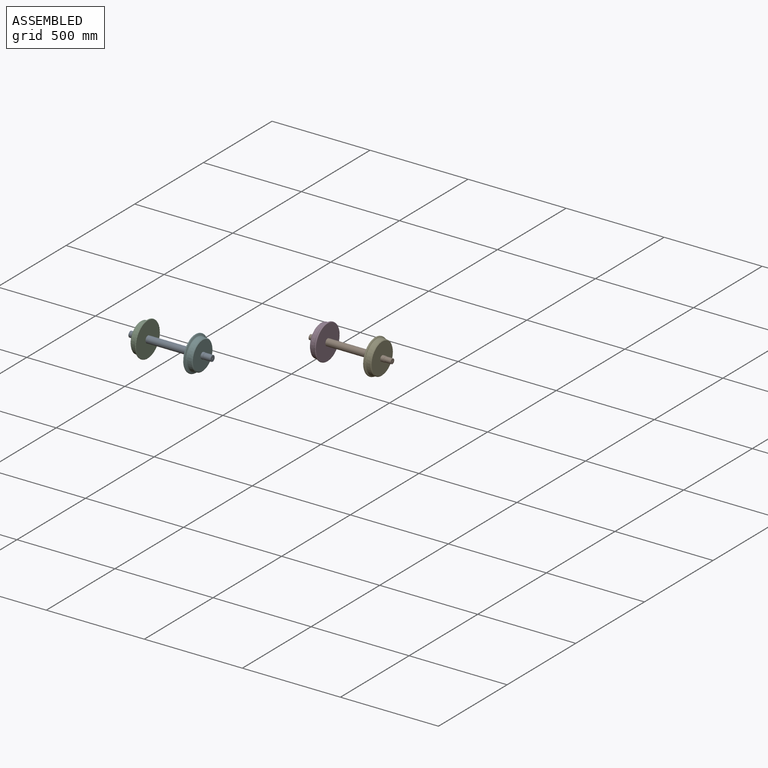
[diagram: assembled view]
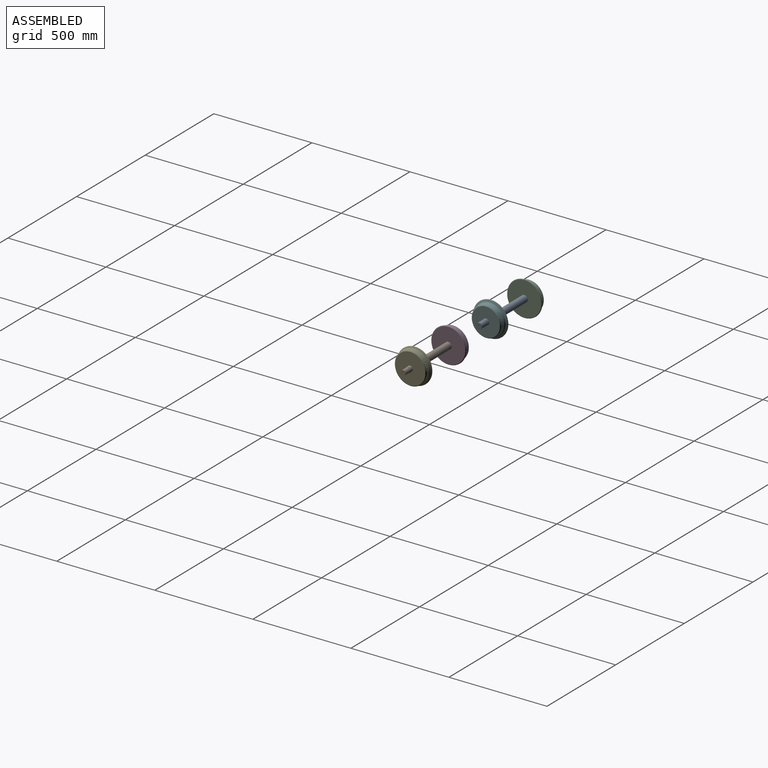
[diagram: assembled view, second angle]
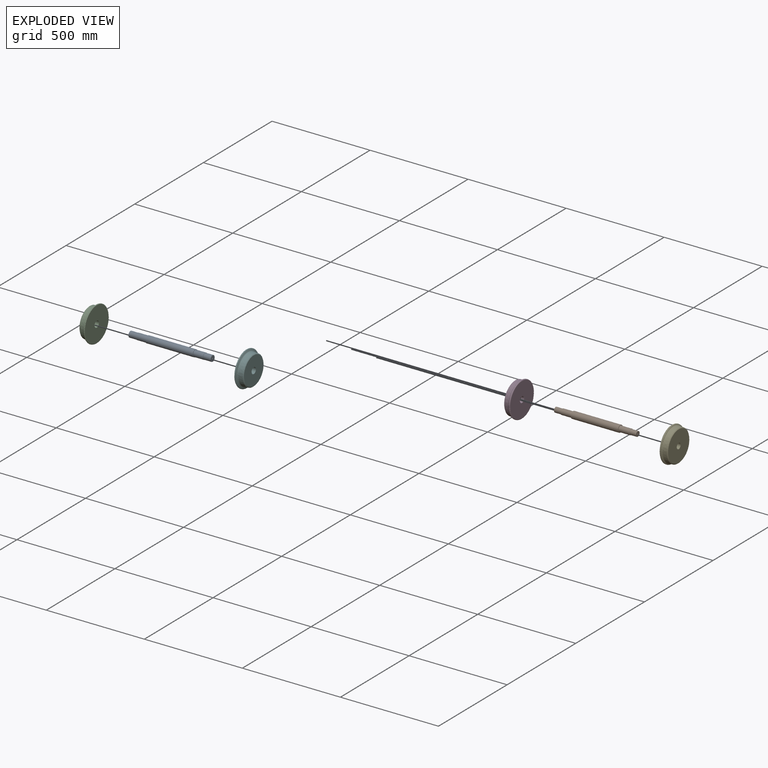
[diagram: exploded view]
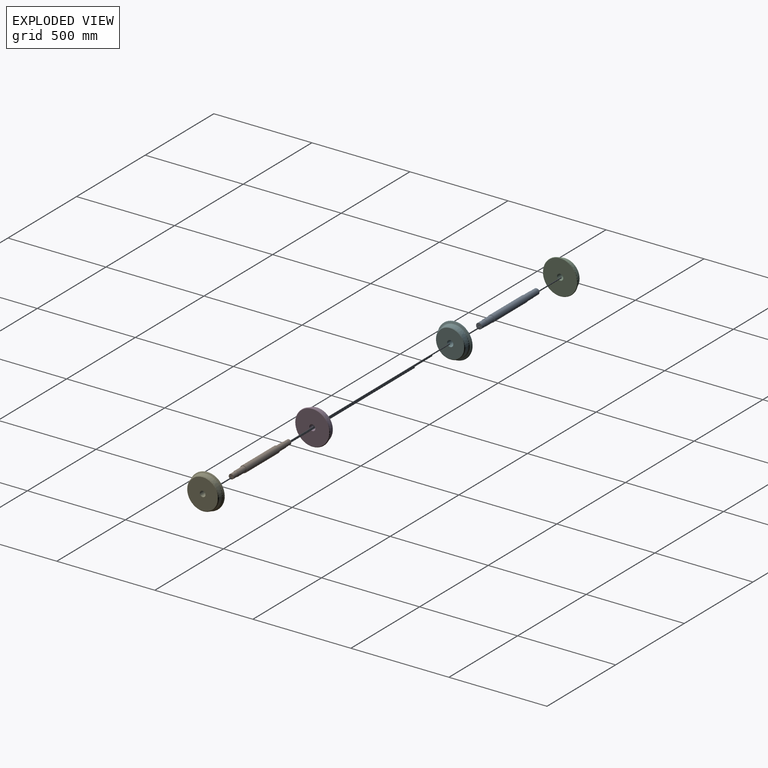
[diagram: exploded view, second angle]
ASSEMBLY  parts=6 mates=4
PART A: 13 faces, bbox 419.1x34.9x34.9 mm
  f0: cone r=2.5mm half-angle=45deg, axis (1,0,0), area 27.8mm2, adj f1
  f1: plane 30x30mm, normal (1,0,0), area 687.2mm2, adj f0,f2
  f2: cylinder r=15mm len=38.1mm, axis (-1,0,0), area 3590.8mm2, adj f1,f3
  f3: plane 31.75x31.75mm, normal (1,0,0), area 84.9mm2, adj f2,f4
  f4: cylinder r=15.88mm len=50.8mm, axis (-1,0,0), area 5067.1mm2, adj f3,f5
  f5: plane 34.93x34.93mm, normal (1,0,0), area 166.3mm2, adj f4,f6
  f6: cylinder r=17.46mm len=241.3mm, axis (-1,0,0), area 26475.5mm2, adj f5,f12
  f7: cone r=2.5mm half-angle=45deg, axis (-1,0,0), area 27.8mm2, adj f8
  f8: plane 30x30mm, normal (-1,0,0), area 687.2mm2, adj f7,f9
  f9: cylinder r=15mm len=38.1mm, axis (1,0,0), area 3590.8mm2, adj f8,f10
  f10: plane 31.75x31.75mm, normal (-1,0,0), area 84.9mm2, adj f9,f11
  f11: cylinder r=15.88mm len=50.8mm, axis (1,0,0), area 5067.1mm2, adj f10,f12
  f12: plane 34.93x34.93mm, normal (-1,0,0), area 166.3mm2, adj f6,f11
PART B: 15 faces, bbox 419.1x36.8x36.8 mm
  f0: cylinder r=17.46mm len=241.3mm, axis (1,0,0), area 26475.5mm2, adj f7,f14
  f1: cone r=0mm half-angle=45deg, axis (1,0,0), area 27.8mm2, adj f2
  f2: plane 25.4x25.4mm, normal (1,0,0), area 487.1mm2, adj f1,f3
  f3: cylinder r=12.7mm len=33.34mm, axis (1,0,0), area 2660.2mm2, adj f2,f4
  f4: torus R=14.29mm, axis (1,0,0), area 208mm2, adj f3,f5
  f5: cylinder r=14.29mm len=52.39mm, axis (1,0,0), area 4702.9mm2, adj f4,f6
  f6: torus R=15.88mm, axis (1,0,0), area 232.9mm2, adj f5,f7
  f7: plane 34.93x34.93mm, normal (1,0,0), area 166.3mm2, adj f0,f6
  f8: cone r=0mm half-angle=45deg, axis (-1,0,0), area 27.8mm2, adj f9
  f9: plane 25.4x25.4mm, normal (-1,0,0), area 487.1mm2, adj f8,f10
  f10: cylinder r=12.7mm len=33.34mm, axis (-1,0,0), area 2660.2mm2, adj f9,f11
  f11: torus R=14.29mm, axis (-1,0,0), area 208mm2, adj f10,f12
  f12: cylinder r=14.29mm len=52.39mm, axis (-1,0,0), area 4702.9mm2, adj f11,f13
  f13: torus R=15.88mm, axis (-1,0,0), area 232.9mm2, adj f12,f14
  f14: plane 34.93x34.93mm, normal (-1,0,0), area 166.3mm2, adj f0,f13
PART C: 10 faces, bbox 38.1x192.4x192.4 mm
  f0: plane 172.9x172.9mm, normal (-1,0,0), area 22686.6mm2, adj f1,f8
  f1: cylinder r=15.88mm len=38.1mm, axis (-1,0,0), area 3800.3mm2, adj f0,f2
  f2: plane 142.69x142.69mm, normal (1,0,0), area 15200.3mm2, adj f1,f6
  f3: cone r=76.2mm half-angle=3deg, axis (-1,0,0), area 10465.4mm2, adj f6,f9
  f4: cone r=88.9mm half-angle=70deg, axis (-1,0,0), area 4416.7mm2, adj f7,f9
  f5: cylinder r=88.9mm len=177.8mm, axis (-1,0,0), area 410.5mm2, adj f7,f8
  f6: cone r=74.87mm half-angle=48deg, axis (-1,0,0), area 2176.6mm2, adj f2,f3
  f7: torus R=86.45mm, axis (1,0,0), area 1662.2mm2, adj f4,f5
  f8: torus R=86.45mm, axis (-1,0,0), area 2129.2mm2, adj f0,f5
  f9: torus R=81.1mm, axis (-1,0,0), area 2883mm2, adj f3,f4
PART D: 11 faces, bbox 36.5x192.4x192.4 mm
  f0: plane 171.23x171.23mm, normal (-1,0,0), area 22235.2mm2, adj f7,f9
  f1: cylinder r=14.29mm len=34.91mm, axis (-1,0,0), area 3134.1mm2, adj f2,f7
  f2: plane 154.88x154.88mm, normal (1,0,0), area 18199.8mm2, adj f1,f6
  f3: cone r=80.8mm half-angle=3deg, axis (-1,0,0), area 10484.5mm2, adj f6,f10
  f4: cone r=82.21mm half-angle=70deg, axis (-1,0,0), area 786.5mm2, adj f8,f10
  f5: cylinder r=88.9mm len=177.8mm, axis (-1,0,0), area 839.5mm2, adj f8,f9
  f6: cone r=80.96mm half-angle=48deg, axis (-1,0,0), area 2358.1mm2, adj f2,f3
  f7: torus R=15.88mm, axis (-1,0,0), area 232.9mm2, adj f0,f1
  f8: torus R=85.61mm, axis (1,0,0), area 2223.6mm2, adj f4,f5
  f9: torus R=85.61mm, axis (-1,0,0), area 2844.7mm2, adj f0,f5
  f10: torus R=87.11mm, axis (-1,0,0), area 3107.4mm2, adj f3,f4
PART E: same geometry as D
PART F: same geometry as C
PLACE A t=(-510.83,-254.15,44.68)mm
PLACE B t=(-600.02,-83.01,179.28)mm
PLACE C rot(axis=(0,0,1),180deg) t=(-1054.51,-254.15,44.68)mm
PLACE D rot(axis=(0,1,0),180deg) t=(541.47,-83.01,179.28)mm
PLACE E t=(-814.18,-83.01,179.28)mm
PLACE F t=(-813.21,-254.15,44.68)mm
MATE slider C.f1 <-> A.f0  axis (1,0,0) through (-1054.51,-254.15,44.68)mm
MATE slider D.f1 <-> B.f0  axis (1,0,0) through (-257,-83.01,179.28)mm
MATE slider E.f1 <-> B.f0  axis (-1,0,0) through (-15.7,-83.01,179.28)mm
MATE slider F.f1 <-> A.f0  axis (-1,0,0) through (-813.21,-254.15,44.68)mm
